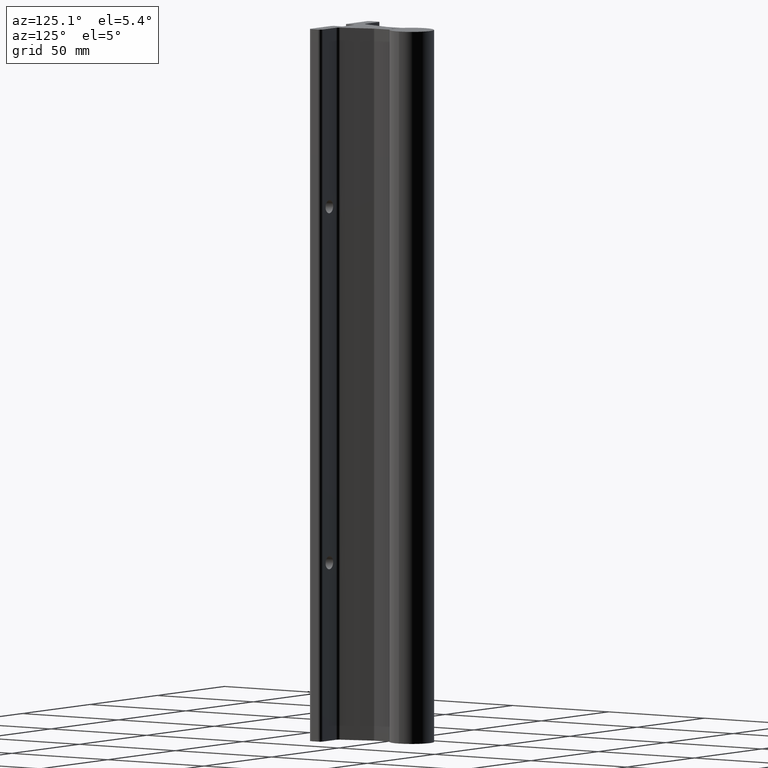
[diagram: clean part render]
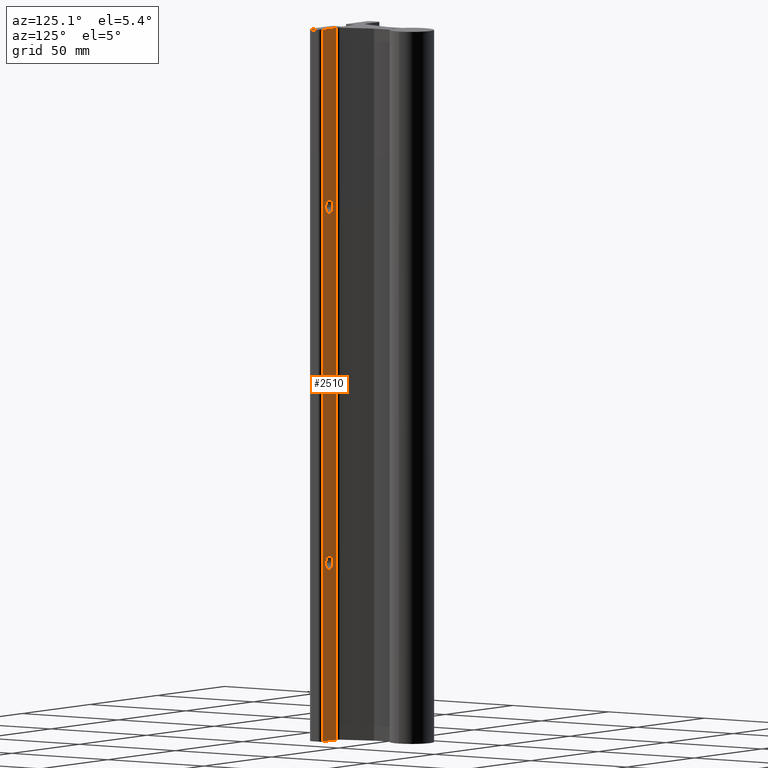
[diagram: same view with one face highlighted and labeled with its STEP entity id]
A machine part, auxiliary view. The second image highlights one B-rep face of the part: STEP entity #2510.
In plain terms, the highlighted planar face has unit normal (0, 1, 0).
Its self-contained STEP definition (entity closure, byte-faithful):
#1 = VERTEX_POINT ( 'NONE', #377 ) ;
#3 = CARTESIAN_POINT ( 'NONE',  ( 0.4315582357000011249, 0.2500000000000002220, -12.00000000000000178 ) ) ;
#197 = FACE_BOUND ( 'NONE', #2336, .T. ) ;
#202 = LINE ( 'NONE', #3225, #2664 ) ;
#227 = CARTESIAN_POINT ( 'NONE',  ( 0.8149999999999996136, 0.2500000000000001110, 0.000000000000000000 ) ) ;
#337 = CARTESIAN_POINT ( 'NONE',  ( 0.6250000000000000000, 0.2500000000000000555, -3.000000000000000444 ) ) ;
#368 = ORIENTED_EDGE ( 'NONE', *, *, #3474, .T. ) ;
#377 = CARTESIAN_POINT ( 'NONE',  ( 0.6250000000000000000, 0.2500000000000000555, -3.110500000000000043 ) ) ;
#393 = ORIENTED_EDGE ( 'NONE', *, *, #2095, .T. ) ;
#421 = CARTESIAN_POINT ( 'NONE',  ( 0.6250000000000000000, 0.2500000000000000555, -8.889500000000001734 ) ) ;
#519 = DIRECTION ( 'NONE',  ( 0.000000000000000000, 0.000000000000000000, 1.000000000000000000 ) ) ;
#617 = EDGE_LOOP ( 'NONE', ( #2877, #2898 ) ) ;
#717 = DIRECTION ( 'NONE',  ( -2.671704266472630380E-16, -1.000000000000000000, 0.000000000000000000 ) ) ;
#738 = DIRECTION ( 'NONE',  ( -1.000000000000000000, 3.090325784688081574E-16, 0.000000000000000000 ) ) ;
#806 = DIRECTION ( 'NONE',  ( 2.671704266472630380E-16, 1.000000000000000000, -0.000000000000000000 ) ) ;
#876 = DIRECTION ( 'NONE',  ( 0.000000000000000000, 0.000000000000000000, 1.000000000000000000 ) ) ;
#948 = EDGE_LOOP ( 'NONE', ( #2089, #393, #1463, #1303 ) ) ;
#971 = VERTEX_POINT ( 'NONE', #2799 ) ;
#976 = EDGE_CURVE ( 'NONE', #3084, #3698, #3421, .T. ) ;
#1091 = CARTESIAN_POINT ( 'NONE',  ( 0.6250000000000000000, 0.2500000000000000555, -3.000000000000000444 ) ) ;
#1096 = VECTOR ( 'NONE', #1435, 39.37007874015748143 ) ;
#1099 = PLANE ( 'NONE',  #3115 ) ;
#1152 = EDGE_CURVE ( 'NONE', #2615, #1550, #2100, .T. ) ;
#1259 = CIRCLE ( 'NONE', #3490, 0.1104999999999999594 ) ;
#1280 = CARTESIAN_POINT ( 'NONE',  ( 0.8149999999999996136, 0.2500000000000001110, 0.000000000000000000 ) ) ;
#1303 = ORIENTED_EDGE ( 'NONE', *, *, #3794, .F. ) ;
#1328 = VERTEX_POINT ( 'NONE', #1280 ) ;
#1329 = DIRECTION ( 'NONE',  ( -1.000000000000000000, 3.090325784688081574E-16, 0.000000000000000000 ) ) ;
#1335 = AXIS2_PLACEMENT_3D ( 'NONE', #3758, #1945, #1329 ) ;
#1349 = CARTESIAN_POINT ( 'NONE',  ( 0.6250000000000000000, 0.2500000000000000555, -9.000000000000001776 ) ) ;
#1435 = DIRECTION ( 'NONE',  ( -1.000000000000000000, 2.671704266472630380E-16, 0.000000000000000000 ) ) ;
#1463 = ORIENTED_EDGE ( 'NONE', *, *, #3280, .F. ) ;
#1477 = CARTESIAN_POINT ( 'NONE',  ( 0.8149999999999996136, 0.2500000000000001110, -12.00000000000000178 ) ) ;
#1517 = EDGE_CURVE ( 'NONE', #1, #971, #1259, .T. ) ;
#1540 = CARTESIAN_POINT ( 'NONE',  ( 0.8149999999999996136, 0.2500000000000001110, -14.10463218188033174 ) ) ;
#1550 = VERTEX_POINT ( 'NONE', #3251 ) ;
#1649 = AXIS2_PLACEMENT_3D ( 'NONE', #337, #1857, #2829 ) ;
#1857 = DIRECTION ( 'NONE',  ( -2.671704266472630380E-16, -1.000000000000000000, 0.000000000000000000 ) ) ;
#1937 = DIRECTION ( 'NONE',  ( -1.000000000000000000, 3.090325784688081574E-16, 0.000000000000000000 ) ) ;
#1945 = DIRECTION ( 'NONE',  ( -2.671704266472630380E-16, -1.000000000000000000, 0.000000000000000000 ) ) ;
#2089 = ORIENTED_EDGE ( 'NONE', *, *, #1152, .F. ) ;
#2095 = EDGE_CURVE ( 'NONE', #2615, #3565, #202, .T. ) ;
#2100 = LINE ( 'NONE', #1477, #3295 ) ;
#2122 = DIRECTION ( 'NONE',  ( -1.000000000000000000, 2.671704266472630380E-16, 0.000000000000000000 ) ) ;
#2301 = CARTESIAN_POINT ( 'NONE',  ( 0.8149999999999996136, 0.2500000000000001110, -14.10463218188033174 ) ) ;
#2309 = EDGE_CURVE ( 'NONE', #3698, #3084, #3685, .T. ) ;
#2336 = EDGE_LOOP ( 'NONE', ( #2367, #368 ) ) ;
#2359 = CARTESIAN_POINT ( 'NONE',  ( 0.6250000000000000000, 0.2500000000000000555, -9.110500000000001819 ) ) ;
#2367 = ORIENTED_EDGE ( 'NONE', *, *, #1517, .T. ) ;
#2506 = DIRECTION ( 'NONE',  ( -2.671704266472630380E-16, -1.000000000000000000, 0.000000000000000000 ) ) ;
#2510 = ADVANCED_FACE ( 'NONE', ( #2899, #197, #2598 ), #1099, .T. ) ;
#2598 = FACE_OUTER_BOUND ( 'NONE', #948, .T. ) ;
#2615 = VERTEX_POINT ( 'NONE', #3 ) ;
#2664 = VECTOR ( 'NONE', #519, 39.37007874015748143 ) ;
#2681 = DIRECTION ( 'NONE',  ( 1.000000000000000000, -2.671704266472630380E-16, 0.000000000000000000 ) ) ;
#2705 = AXIS2_PLACEMENT_3D ( 'NONE', #1349, #2506, #738 ) ;
#2799 = CARTESIAN_POINT ( 'NONE',  ( 0.6250000000000000000, 0.2500000000000000555, -2.889500000000000401 ) ) ;
#2829 = DIRECTION ( 'NONE',  ( -1.000000000000000000, 3.090325784688081574E-16, 0.000000000000000000 ) ) ;
#2877 = ORIENTED_EDGE ( 'NONE', *, *, #2309, .T. ) ;
#2898 = ORIENTED_EDGE ( 'NONE', *, *, #976, .T. ) ;
#2899 = FACE_BOUND ( 'NONE', #617, .T. ) ;
#2961 = LINE ( 'NONE', #227, #1096 ) ;
#3017 = LINE ( 'NONE', #1540, #3592 ) ;
#3084 = VERTEX_POINT ( 'NONE', #421 ) ;
#3115 = AXIS2_PLACEMENT_3D ( 'NONE', #2301, #806, #2122 ) ;
#3225 = CARTESIAN_POINT ( 'NONE',  ( 0.4315582357000011249, 0.2500000000000002220, -14.10463218188033174 ) ) ;
#3251 = CARTESIAN_POINT ( 'NONE',  ( 0.8149999999999996136, 0.2500000000000001110, -12.00000000000000178 ) ) ;
#3280 = EDGE_CURVE ( 'NONE', #1328, #3565, #2961, .T. ) ;
#3295 = VECTOR ( 'NONE', #2681, 39.37007874015748143 ) ;
#3359 = CIRCLE ( 'NONE', #1649, 0.1104999999999999594 ) ;
#3421 = CIRCLE ( 'NONE', #2705, 0.1104999999999999594 ) ;
#3474 = EDGE_CURVE ( 'NONE', #971, #1, #3359, .T. ) ;
#3490 = AXIS2_PLACEMENT_3D ( 'NONE', #1091, #717, #1937 ) ;
#3565 = VERTEX_POINT ( 'NONE', #3701 ) ;
#3592 = VECTOR ( 'NONE', #876, 39.37007874015748143 ) ;
#3685 = CIRCLE ( 'NONE', #1335, 0.1104999999999999594 ) ;
#3698 = VERTEX_POINT ( 'NONE', #2359 ) ;
#3701 = CARTESIAN_POINT ( 'NONE',  ( 0.4315582357000011249, 0.2500000000000002776, 0.000000000000000000 ) ) ;
#3758 = CARTESIAN_POINT ( 'NONE',  ( 0.6250000000000000000, 0.2500000000000000555, -9.000000000000001776 ) ) ;
#3794 = EDGE_CURVE ( 'NONE', #1550, #1328, #3017, .T. ) ;